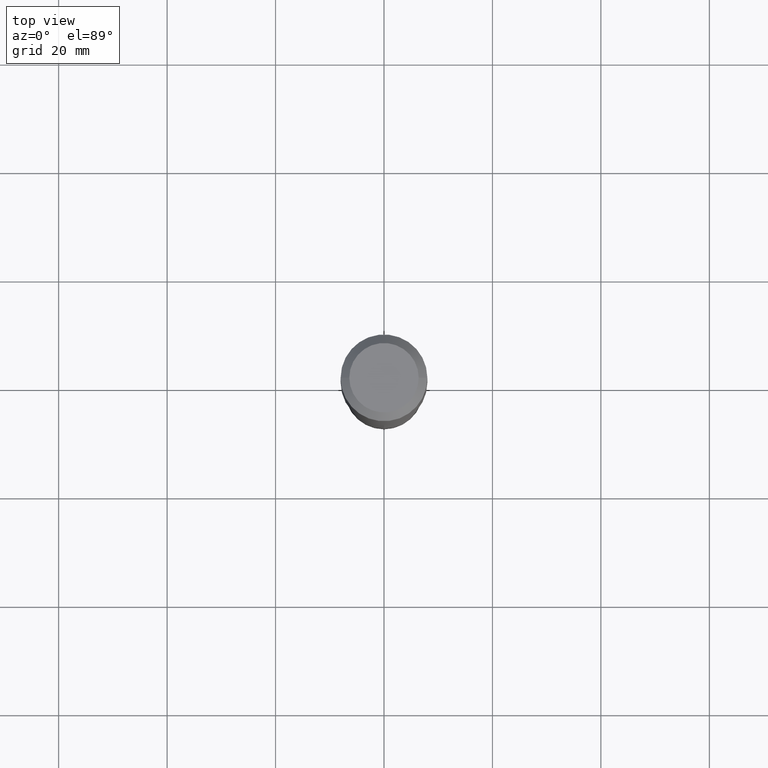
[diagram: clean part render]
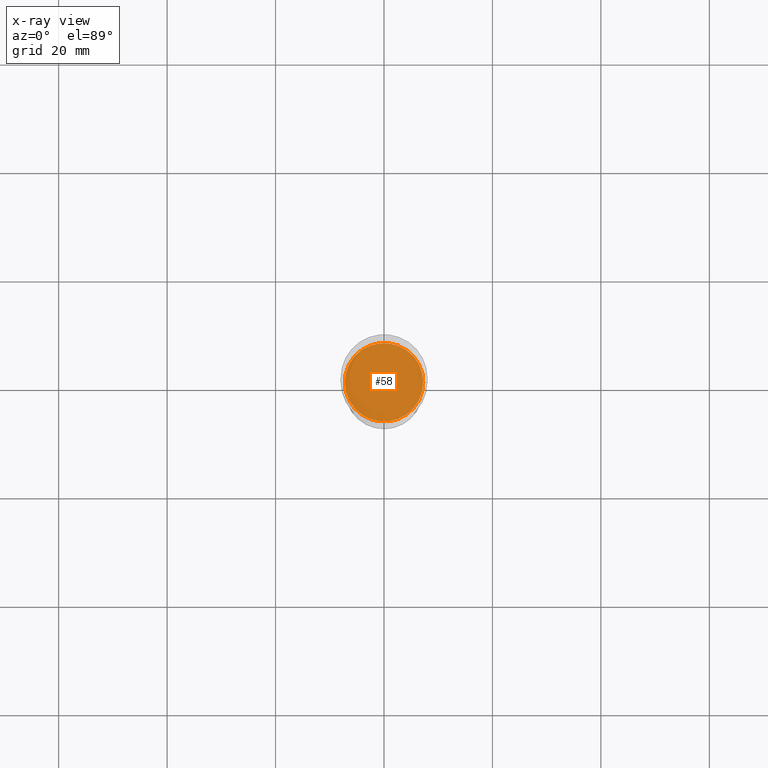
[diagram: x-ray — body ghosted, one internal face saturated and labeled with its STEP entity id]
A machine part, top view, then the same camera in x-ray: the body is ghosted and one INTERNAL B-rep face — a face not visible from any outside direction — is saturated and labeled: STEP entity #58.
In plain terms, the highlighted planar face has unit normal (-0, 0, 1).
Its self-contained STEP definition (entity closure, byte-faithful):
#20 = VERTEX_POINT ( 'NONE', #311 ) ;
#25 = CIRCLE ( 'NONE', #400, 0.2849499999999999811 ) ;
#43 = EDGE_LOOP ( 'NONE', ( #70, #79 ) ) ;
#58 = ADVANCED_FACE ( 'NONE', ( #283 ), #194, .F. ) ;
#70 = ORIENTED_EDGE ( 'NONE', *, *, #204, .F. ) ;
#79 = ORIENTED_EDGE ( 'NONE', *, *, #191, .F. ) ;
#137 = CIRCLE ( 'NONE', #267, 0.2849499999999999811 ) ;
#144 = CARTESIAN_POINT ( 'NONE',  ( 0.2849499999999999811, -8.862077934251663082E-15, -1.968299999999999272 ) ) ;
#163 = CARTESIAN_POINT ( 'NONE',  ( 4.813416251214202584E-29, -6.872282719244960739E-15, -1.968299999999999272 ) ) ;
#191 = EDGE_CURVE ( 'NONE', #20, #490, #137, .T. ) ;
#194 = PLANE ( 'NONE',  #452 ) ;
#204 = EDGE_CURVE ( 'NONE', #490, #20, #25, .T. ) ;
#218 = DIRECTION ( 'NONE',  ( -2.438088387897960049E-29, 3.491481338843145188E-15, 1.000000000000000000 ) ) ;
#224 = DIRECTION ( 'NONE',  ( 1.000000000000000000, -6.982962677686265922E-15, 4.876176775795935793E-29 ) ) ;
#236 = CARTESIAN_POINT ( 'NONE',  ( 4.813416251214202584E-29, -6.872282719244960739E-15, -1.968299999999999272 ) ) ;
#248 = DIRECTION ( 'NONE',  ( 1.000000000000000000, -6.982962677686268288E-15, 0.000000000000000000 ) ) ;
#267 = AXIS2_PLACEMENT_3D ( 'NONE', #236, #433, #309 ) ;
#283 = FACE_OUTER_BOUND ( 'NONE', #43, .T. ) ;
#292 = DIRECTION ( 'NONE',  ( -2.445468806185136597E-29, 3.491481338843145583E-15, 1.000000000000000000 ) ) ;
#309 = DIRECTION ( 'NONE',  ( 1.000000000000000000, -6.982962677686268288E-15, 0.000000000000000000 ) ) ;
#311 = CARTESIAN_POINT ( 'NONE',  ( -0.2849499999999999811, -4.844941966522444587E-15, -1.968299999999999272 ) ) ;
#328 = CARTESIAN_POINT ( 'NONE',  ( 4.813416251214202584E-29, -6.872282719244960739E-15, -1.968299999999999272 ) ) ;
#400 = AXIS2_PLACEMENT_3D ( 'NONE', #163, #292, #248 ) ;
#433 = DIRECTION ( 'NONE',  ( -2.445468806185136597E-29, 3.491481338843145583E-15, 1.000000000000000000 ) ) ;
#452 = AXIS2_PLACEMENT_3D ( 'NONE', #328, #218, #224 ) ;
#490 = VERTEX_POINT ( 'NONE', #144 ) ;